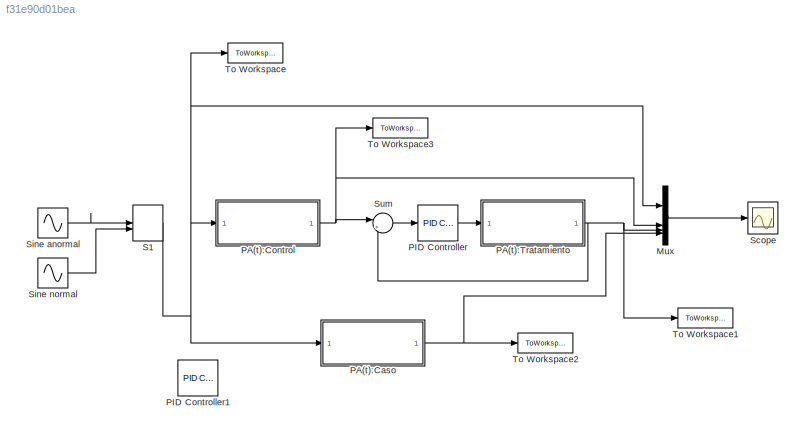
MODEL slx_f31e90d01bea
KIND model
CONFIG AbsTol = auto
CONFIG EnableMultiTasking = off
CONFIG FixedStep = auto
CONFIG MaxStep = auto
CONFIG MinStep = auto
CONFIG RelTol = 1e-3
CONFIG SampleTimeConstraint = Unconstrained
CONFIG SolverName = VariableStepAuto
CONFIG StartTime = 0.0
CONFIG StopTime = 10
BLOCK [Mux] Mux
  DisplayOption = bar
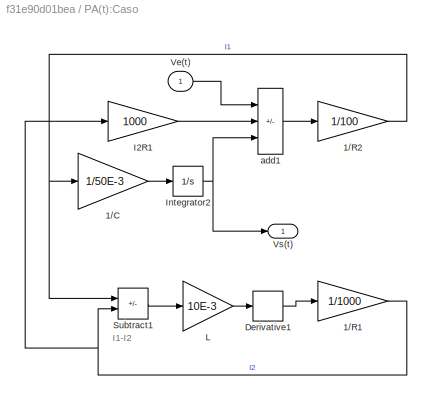
BLOCK [SubSystem] PA(t):Caso
BLOCK [Gain] PA(t):Caso/1//C
  Gain = 1/50E-3
BLOCK [Gain] PA(t):Caso/1//R1
  Gain = 1/1000
BLOCK [Gain] PA(t):Caso/1//R2
  Gain = 1/100
BLOCK [Derivative] PA(t):Caso/Derivative1
BLOCK [Gain] PA(t):Caso/I2R1
  Gain = 1000
BLOCK [Integrator] PA(t):Caso/Integrator2
BLOCK [Gain] PA(t):Caso/L
  Gain = 10E-3
BLOCK [Sum] PA(t):Caso/Subtract1
  IconShape = rectangular
  Inputs = +-
BLOCK [Inport] PA(t):Caso/Ve(t)
BLOCK [Outport] PA(t):Caso/Vs(t)
BLOCK [Sum] PA(t):Caso/add1
  IconShape = rectangular
  Inputs = +--
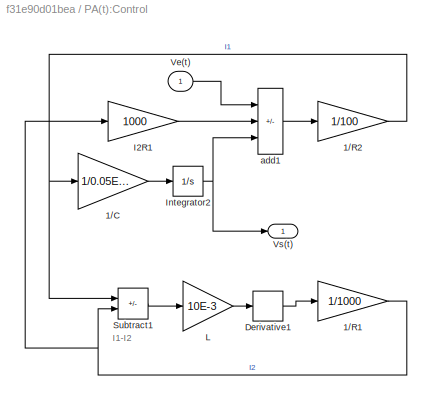
BLOCK [SubSystem] PA(t):Control
BLOCK [Gain] PA(t):Control/1//C
  Gain = 1/0.05E-3
BLOCK [Gain] PA(t):Control/1//R1
  Gain = 1/1000
BLOCK [Gain] PA(t):Control/1//R2
  Gain = 1/100
BLOCK [Derivative] PA(t):Control/Derivative1
BLOCK [Gain] PA(t):Control/I2R1
  Gain = 1000
BLOCK [Integrator] PA(t):Control/Integrator2
BLOCK [Gain] PA(t):Control/L
  Gain = 10E-3
BLOCK [Sum] PA(t):Control/Subtract1
  IconShape = rectangular
  Inputs = +-
BLOCK [Inport] PA(t):Control/Ve(t)
BLOCK [Outport] PA(t):Control/Vs(t)
BLOCK [Sum] PA(t):Control/add1
  IconShape = rectangular
  Inputs = +--
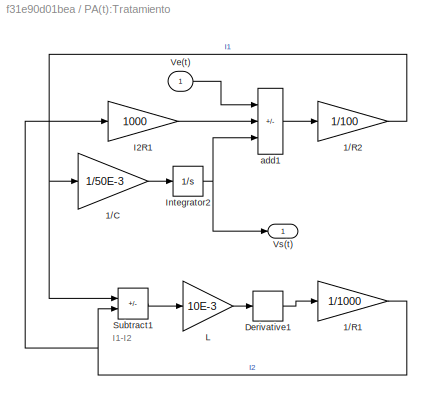
BLOCK [SubSystem] PA(t):Tratamiento
BLOCK [Gain] PA(t):Tratamiento/1//C
  Gain = 1/50E-3
BLOCK [Gain] PA(t):Tratamiento/1//R1
  Gain = 1/1000
BLOCK [Gain] PA(t):Tratamiento/1//R2
  Gain = 1/100
BLOCK [Derivative] PA(t):Tratamiento/Derivative1
BLOCK [Gain] PA(t):Tratamiento/I2R1
  Gain = 1000
BLOCK [Integrator] PA(t):Tratamiento/Integrator2
BLOCK [Gain] PA(t):Tratamiento/L
  Gain = 10E-3
BLOCK [Sum] PA(t):Tratamiento/Subtract1
  IconShape = rectangular
  Inputs = +-
BLOCK [Inport] PA(t):Tratamiento/Ve(t)
BLOCK [Outport] PA(t):Tratamiento/Vs(t)
BLOCK [Sum] PA(t):Tratamiento/add1
  IconShape = rectangular
  Inputs = +--
BLOCK [Reference] PID Controller  REF=slpidlib/PID Controller
  LibrarySourceBlock = simulink/Continuous/PID Controller
  SourceBlock = slpidlib/PID Controller
  SourceType = PID 1dof
BLOCK [Reference] PID Controller1  REF=slpidlib/PID Controller
  LibrarySourceBlock = simulink/Continuous/PID Controller
  SourceBlock = slpidlib/PID Controller
  SourceType = PID 1dof
BLOCK [ManualSwitch] S1
BLOCK [Scope] Scope
  Floating = off
  NumInputPorts = 1
  ScopeSpecificationString = Simulink.scopes.TimeScopeBlockCfg('CurrentConfiguration', extmgr.ConfigurationSet(extmgr.Configuration('Core','General UI',true),extmgr.Configuration('Core','Source UI',true),extmgr.Configuration('Sources','WiredSimulink',true),extmgr.Configuration('Visuals','Time Domain',true,'SerializedDisplays',{struct('MinYLimReal','-2.60402','MaxYLimReal','7.46768','YLabelReal','','MinYLimMag','0.00000','MaxY...<+1727ch>
BLOCK [Sin] Sine anormal 
  Amplitude = 2.5
  Frequency = pi
  SampleTime = 0
BLOCK [Sin] Sine normal
  Amplitude = 2.5
  Frequency = pi/2
  SampleTime = 0
BLOCK [Sum] Sum
  Inputs = |+-
BLOCK [ToWorkspace] To Workspace
  FixptAsFi = on
  MaxDataPoints = inf
  SampleTime = -1
  VariableName = Pao
BLOCK [ToWorkspace] To Workspace1
  FixptAsFi = on
  MaxDataPoints = inf
  SampleTime = -1
  VariableName = PAz
BLOCK [ToWorkspace] To Workspace2
  FixptAsFi = on
  MaxDataPoints = inf
  SampleTime = -1
  VariableName = PAy
BLOCK [ToWorkspace] To Workspace3
  FixptAsFi = on
  MaxDataPoints = inf
  SampleTime = -1
  VariableName = PAx
ANNOTATION PA(t):Caso: I1-I2
ANNOTATION PA(t):Control: I1-I2
ANNOTATION PA(t):Tratamiento: I1-I2
LINE Mux:1 -> Scope:1
LINE PA(t):Caso/1//C:1 -> PA(t):Caso/Integrator2:1
NET PA(t):Caso/1//R1:1 -> PA(t):Caso/I2R1:1, PA(t):Caso/Subtract1:2
NET PA(t):Caso/1//R2:1 -> PA(t):Caso/1//C:1, PA(t):Caso/Subtract1:1
LINE PA(t):Caso/Derivative1:1 -> PA(t):Caso/1//R1:1
LINE PA(t):Caso/I2R1:1 -> PA(t):Caso/add1:2
NET PA(t):Caso/Integrator2:1 -> PA(t):Caso/Vs(t):1, PA(t):Caso/add1:3
LINE PA(t):Caso/L:1 -> PA(t):Caso/Derivative1:1
LINE PA(t):Caso/Subtract1:1 -> PA(t):Caso/L:1
LINE PA(t):Caso/Ve(t):1 -> PA(t):Caso/add1:1
LINE PA(t):Caso/add1:1 -> PA(t):Caso/1//R2:1
NET PA(t):Caso:1 -> Mux:4, To Workspace2:1
LINE PA(t):Control/1//C:1 -> PA(t):Control/Integrator2:1
NET PA(t):Control/1//R1:1 -> PA(t):Control/I2R1:1, PA(t):Control/Subtract1:2
NET PA(t):Control/1//R2:1 -> PA(t):Control/1//C:1, PA(t):Control/Subtract1:1
LINE PA(t):Control/Derivative1:1 -> PA(t):Control/1//R1:1
LINE PA(t):Control/I2R1:1 -> PA(t):Control/add1:2
NET PA(t):Control/Integrator2:1 -> PA(t):Control/Vs(t):1, PA(t):Control/add1:3
LINE PA(t):Control/L:1 -> PA(t):Control/Derivative1:1
LINE PA(t):Control/Subtract1:1 -> PA(t):Control/L:1
LINE PA(t):Control/Ve(t):1 -> PA(t):Control/add1:1
LINE PA(t):Control/add1:1 -> PA(t):Control/1//R2:1
NET PA(t):Control:1 -> Mux:2, Sum:1, To Workspace3:1
LINE PA(t):Tratamiento/1//C:1 -> PA(t):Tratamiento/Integrator2:1
NET PA(t):Tratamiento/1//R1:1 -> PA(t):Tratamiento/I2R1:1, PA(t):Tratamiento/Subtract1:2
NET PA(t):Tratamiento/1//R2:1 -> PA(t):Tratamiento/1//C:1, PA(t):Tratamiento/Subtract1:1
LINE PA(t):Tratamiento/Derivative1:1 -> PA(t):Tratamiento/1//R1:1
LINE PA(t):Tratamiento/I2R1:1 -> PA(t):Tratamiento/add1:2
NET PA(t):Tratamiento/Integrator2:1 -> PA(t):Tratamiento/Vs(t):1, PA(t):Tratamiento/add1:3
LINE PA(t):Tratamiento/L:1 -> PA(t):Tratamiento/Derivative1:1
LINE PA(t):Tratamiento/Subtract1:1 -> PA(t):Tratamiento/L:1
LINE PA(t):Tratamiento/Ve(t):1 -> PA(t):Tratamiento/add1:1
LINE PA(t):Tratamiento/add1:1 -> PA(t):Tratamiento/1//R2:1
NET PA(t):Tratamiento:1 -> Mux:3, Sum:2, To Workspace1:1
LINE PID Controller:1 -> PA(t):Tratamiento:1
NET S1:1 -> Mux:1, PA(t):Caso:1, PA(t):Control:1, To Workspace:1
LINE Sine anormal :1 -> S1:1
LINE Sine normal:1 -> S1:2
LINE Sum:1 -> PID Controller:1
note: NET lines group one-source signal fan-out (src -> all destinations, sorted); 1:1 wires keep LINE
